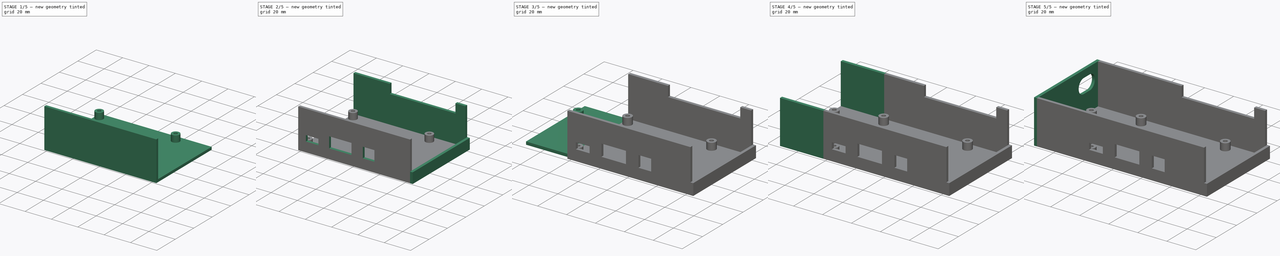
[diagram: build sequence overview — one tinted view per stage of 5, left to right]
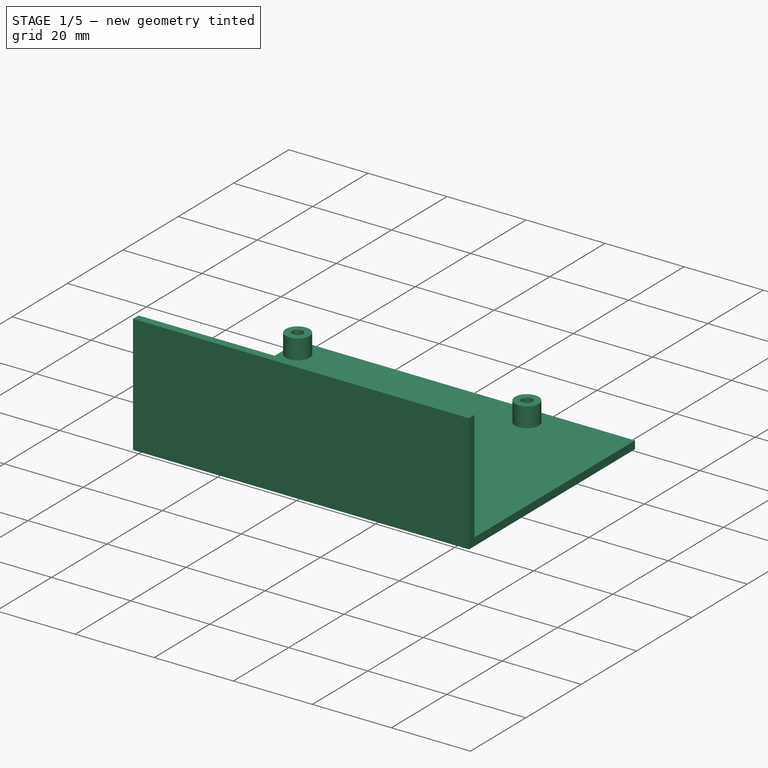
[diagram: stage 1 of 5 — iso view after this stage's code; geometry added in this stage tinted green]
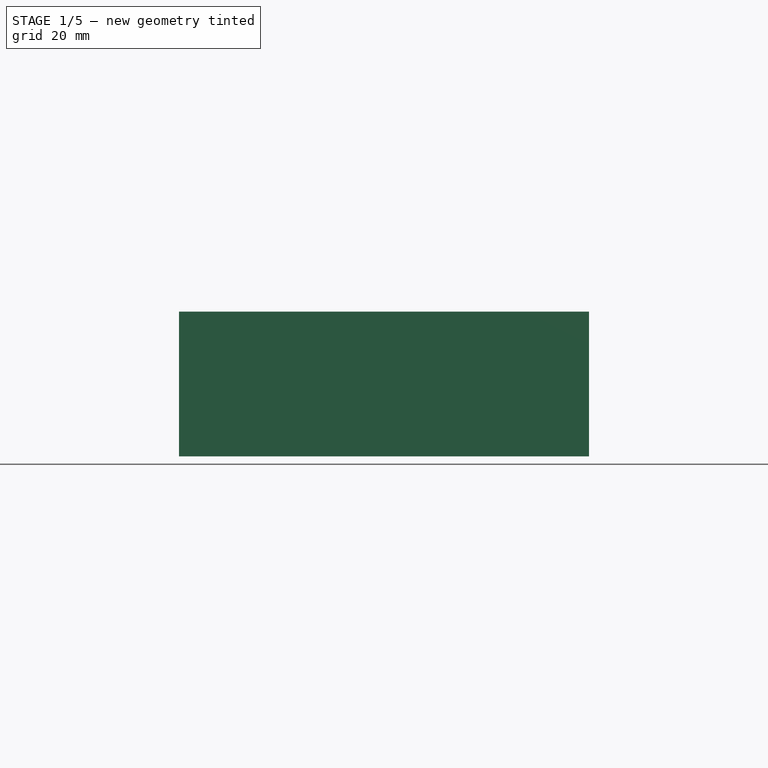
[diagram: stage 1 of 5 — front view after this stage's code; geometry added in this stage tinted green]
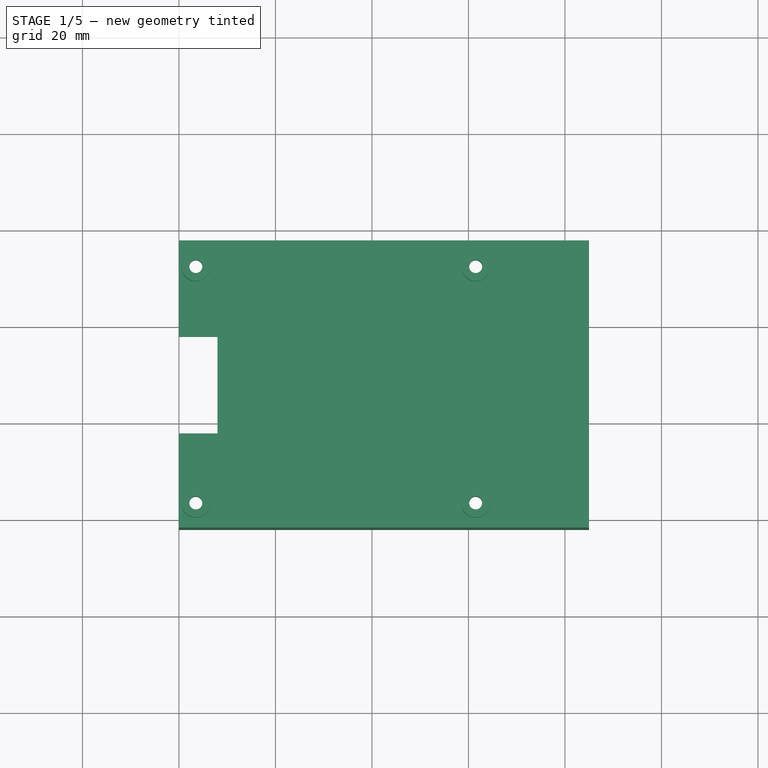
[diagram: stage 1 of 5 — top view after this stage's code; geometry added in this stage tinted green]
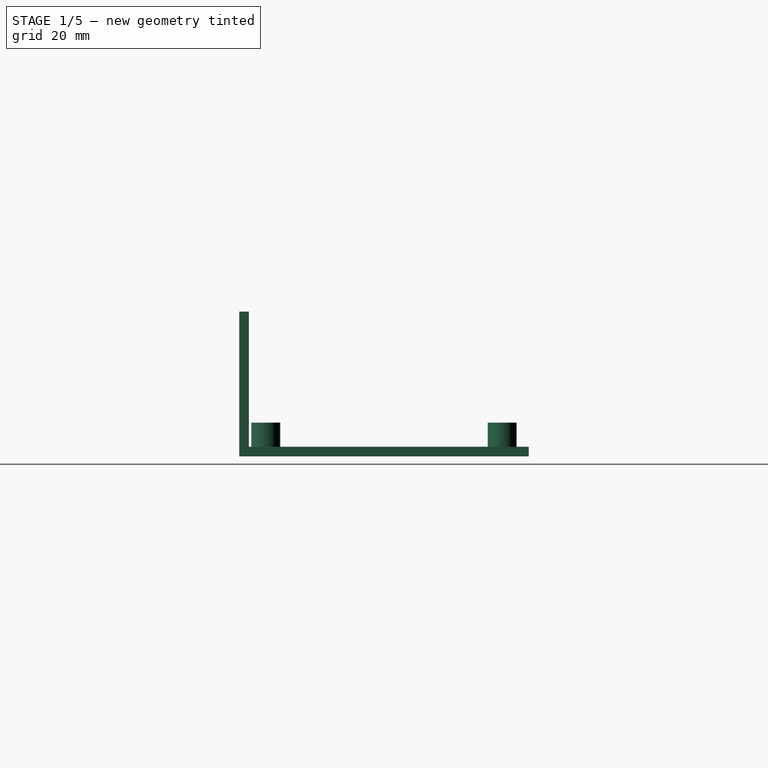
[diagram: stage 1 of 5 — right view after this stage's code; geometry added in this stage tinted green]
FCSTD DOCUMENT  (FreeCAD 0.19R24291 (Git))
Label: RPi 3 Prusa Case
License: All rights reserved
LicenseURL: http://en.wikipedia.org/wiki/All_rights_reserved
objects: Sketcher::SketchObject×18, PartDesign::Pad×10, PartDesign::Pocket×8, PartDesign::Body×1
note: 55 computed .brp shape members not serialized (recipe doc carries the construction recipe); baked Part::Feature solids carry a one-line shape summary decoded from their .brp

FEATURE [Sketcher::SketchObject] Sketch
  FullyConstrained = false
  MapMode = 5
  Support = -> [XY_Plane]
  sketch-geometry (8):
    g0: LineSegment StartX=0 StartY=0 StartZ=0 EndX=85 EndY=0 EndZ=0
    g1: LineSegment StartX=85 StartY=0 StartZ=0 EndX=85 EndY=58 EndZ=0
    g2: LineSegment StartX=85 StartY=58 StartZ=0 EndX=0 EndY=58 EndZ=0
    g3: LineSegment StartX=0 StartY=58 StartZ=0 EndX=0 EndY=0 EndZ=0
    g4: Circle CenterX=3.5 CenterY=3.5 CenterZ=0 NormalX=0 NormalY=0 NormalZ=1 AngleXU=0 Radius=1.35
    g5: Circle CenterX=61.5 CenterY=3.5 CenterZ=0 NormalX=0 NormalY=0 NormalZ=1 AngleXU=0 Radius=1.35
    g6: Circle CenterX=3.5 CenterY=52.5 CenterZ=0 NormalX=0 NormalY=0 NormalZ=1 AngleXU=0 Radius=1.35
    g7: Circle CenterX=61.5 CenterY=52.5 CenterZ=0 NormalX=0 NormalY=0 NormalZ=1 AngleXU=0 Radius=1.35
  constraints (23):
    c: Coincident(g0,g1)
    c: Coincident(g1,g2)
    c: Coincident(g2,g3)
    c: Coincident(g3,g0)
    c: Horizontal(g0)
    c: Horizontal(g2)
    c: Vertical(g1)
    c: Vertical(g3)
    c: Coincident(g0,g-1)
    c: DistanceX(g0,g0) = 85
    c: DistanceY(g3,g3) = 58
    c: Diameter(g4) = 2.7
    c: Equal(g4,g5) = 2.7
    c: Equal(g4,g6) = 2.7
    c: Equal(g4,g7) = 2.7
    c: DistanceX(g0,g4) = 3.5
    c: DistanceY(g0,g4) = 3.5
    c: DistanceY(g4,g6) = 49
    c: DistanceX(g2,g6) = 3.5
    c: DistanceX(g4,g5) = 58
    c: DistanceX(g6,g7) = 58
    c: DistanceY(g5,g7) = 49
    c: DistanceY(g7,g1) = 5.5
FEATURE [PartDesign::Pad] Pad  label="PCB mount holes"
  Direction = (1,1,1)
  Length = 2
  Length2 = 100
  Profile = -> Sketch
  Type = 0
FEATURE [Sketcher::SketchObject] Sketch001
  ExternalGeometry = -> [Pad]
  FullyConstrained = true
  MapMode = 5
  Placement = pos=(0,0,2) rot=(0,0,1;0rad)
  Support = -> [Pad]
  sketch-geometry (4):
    g0: Circle CenterX=61.5 CenterY=3.5 CenterZ=0 NormalX=0 NormalY=0 NormalZ=1 AngleXU=0 Radius=3
    g1: Circle CenterX=61.5 CenterY=52.5 CenterZ=0 NormalX=0 NormalY=0 NormalZ=1 AngleXU=0 Radius=3
    g2: Circle CenterX=3.5 CenterY=3.5 CenterZ=0 NormalX=0 NormalY=0 NormalZ=1 AngleXU=0 Radius=3
    g3: Circle CenterX=3.5 CenterY=52.5 CenterZ=0 NormalX=0 NormalY=0 NormalZ=1 AngleXU=0 Radius=3
  constraints (8):
    c: Coincident(g0,g-3)
    c: Diameter(g0) = 6
    c: Equal(g0,g1) = 6
    c: Coincident(g1,g-4)
    c: Equal(g0,g2) = 6
    c: Coincident(g2,g-6)
    c: Equal(g0,g3) = 6
    c: Coincident(g3,g-5)
FEATURE [PartDesign::Pad] Pad001  label="PCB Standoffs"
  BaseFeature = -> Pad
  Direction = (1,1,1)
  Length = 5
  Length2 = 100
  Profile = -> Sketch001
  Type = 0
FEATURE [Sketcher::SketchObject] Sketch003
  ExternalGeometry = -> [Pad001]
  FullyConstrained = true
  MapMode = 5
  Placement = pos=(0,0,0) rot=(1,0,0;3.14159rad)
  Support = -> [Pad001]
  sketch-geometry (8):
    g0: Circle CenterX=3.5 CenterY=-3.5 CenterZ=0 NormalX=0 NormalY=0 NormalZ=1 AngleXU=0 Radius=1.35
    g1: Circle CenterX=3.5 CenterY=-52.5 CenterZ=0 NormalX=0 NormalY=0 NormalZ=1 AngleXU=0 Radius=1.35
    g2: Circle CenterX=61.5 CenterY=-3.5 CenterZ=0 NormalX=0 NormalY=0 NormalZ=1 AngleXU=0 Radius=1.35
    g3: Circle CenterX=61.5 CenterY=-52.5 CenterZ=0 NormalX=0 NormalY=0 NormalZ=1 AngleXU=0 Radius=1.35
    g4: LineSegment StartX=0 StartY=-18 StartZ=0 EndX=8 EndY=-18 EndZ=0
    g5: LineSegment StartX=8 StartY=-18 StartZ=0 EndX=8 EndY=-38 EndZ=0
    g6: LineSegment StartX=8 StartY=-38 StartZ=0 EndX=0 EndY=-38 EndZ=0
    g7: LineSegment StartX=0 StartY=-38 StartZ=0 EndX=0 EndY=-18 EndZ=0
  constraints (20):
    c: Coincident(g0,g-3)
    c: Coincident(g1,g-4)
    c: Coincident(g2,g-5)
    c: Coincident(g3,g-6)
    c: Diameter(g0) = 2.7
    c: Diameter(g1) = 2.7
    c: Diameter(g2) = 2.7
    c: Diameter(g3) = 2.7
    c: Coincident(g4,g5)
    c: Coincident(g5,g6)
    c: Coincident(g6,g7)
    c: Coincident(g7,g4)
    c: Horizontal(g4)
    c: Horizontal(g6)
    c: Vertical(g5)
    c: Vertical(g7)
    c: DistanceX(g4,g4) = 8
    c: DistanceX(g4,g-1) = 0
    c: DistanceY(g4,g-1) = 18
    c: DistanceY(g5,g5) = 20
FEATURE [PartDesign::Pocket] Pocket  label="Standoff Holes"
  BaseFeature = -> Pad001
  Length = 7
  Length2 = 100
  Profile = -> Sketch003
  Type = 0
FEATURE [Sketcher::SketchObject] Sketch004
  ExternalGeometry = -> [Pocket]
  FullyConstrained = true
  MapMode = 5
  Placement = pos=(0,0,0) rot=(1,0,0;3.14159rad)
  Support = -> [Pocket]
  sketch-geometry (28):
    g0: LineSegment StartX=4.75 StartY=-5.66506 StartZ=0 EndX=6 EndY=-3.5 EndZ=0
    g1: LineSegment StartX=6 StartY=-3.5 StartZ=0 EndX=4.75 EndY=-1.33494 EndZ=0
    g2: LineSegment StartX=4.75 StartY=-1.33494 StartZ=0 EndX=2.25 EndY=-1.33494 EndZ=0
    g3: LineSegment StartX=2.25 StartY=-1.33494 StartZ=0 EndX=1 EndY=-3.5 EndZ=0
    g4: LineSegment StartX=1 StartY=-3.5 StartZ=0 EndX=2.25 EndY=-5.66506 EndZ=0
    g5: LineSegment StartX=2.25 StartY=-5.66506 StartZ=0 EndX=4.75 EndY=-5.66506 EndZ=0
    g6: Circle CenterX=3.5 CenterY=-3.5 CenterZ=0 NormalX=0 NormalY=0 NormalZ=1 AngleXU=0 Radius=2.5
    g7: LineSegment StartX=64 StartY=-3.5 StartZ=0 EndX=62.75 EndY=-1.33494 EndZ=0
    g8: LineSegment StartX=62.75 StartY=-1.33494 StartZ=0 EndX=60.25 EndY=-1.33494 EndZ=0
    g9: LineSegment StartX=60.25 StartY=-1.33494 StartZ=0 EndX=59 EndY=-3.5 EndZ=0
    g10: LineSegment StartX=59 StartY=-3.5 StartZ=0 EndX=60.25 EndY=-5.66506 EndZ=0
    g11: LineSegment StartX=60.25 StartY=-5.66506 StartZ=0 EndX=62.75 EndY=-5.66506 EndZ=0
    g12: LineSegment StartX=62.75 StartY=-5.66506 StartZ=0 EndX=64 EndY=-3.5 EndZ=0
    g13: Circle CenterX=61.5 CenterY=-3.5 CenterZ=0 NormalX=0 NormalY=0 NormalZ=1 AngleXU=0 Radius=2.5
    g14: LineSegment StartX=62.75 StartY=-50.3349 StartZ=0 EndX=60.25 EndY=-50.3349 EndZ=0
    g15: LineSegment StartX=60.25 StartY=-50.3349 StartZ=0 EndX=59 EndY=-52.5 EndZ=0
    g16: LineSegment StartX=59 StartY=-52.5 StartZ=0 EndX=60.25 EndY=-54.6651 EndZ=0
    g17: LineSegment StartX=60.25 StartY=-54.6651 StartZ=0 EndX=62.75 EndY=-54.6651 EndZ=0
    g18: LineSegment StartX=62.75 StartY=-54.6651 StartZ=0 EndX=64 EndY=-52.5 EndZ=0
    g19: LineSegment StartX=64 StartY=-52.5 StartZ=0 EndX=62.75 EndY=-50.3349 EndZ=0
    g20: Circle CenterX=61.5 CenterY=-52.5 CenterZ=0 NormalX=0 NormalY=0 NormalZ=1 AngleXU=0 Radius=2.5
    g21: LineSegment StartX=6 StartY=-52.5 StartZ=0 EndX=4.75 EndY=-50.3349 EndZ=0
    g22: LineSegment StartX=4.75 StartY=-50.3349 StartZ=0 EndX=2.25 EndY=-50.3349 EndZ=0
    g23: LineSegment StartX=2.25 StartY=-50.3349 StartZ=0 EndX=1 EndY=-52.5 EndZ=0
    g24: LineSegment StartX=1 StartY=-52.5 StartZ=0 EndX=2.25 EndY=-54.6651 EndZ=0
    g25: LineSegment StartX=2.25 StartY=-54.6651 StartZ=0 EndX=4.75 EndY=-54.6651 EndZ=0
    g26: LineSegment StartX=4.75 StartY=-54.6651 StartZ=0 EndX=6 EndY=-52.5 EndZ=0
    g27: Circle CenterX=3.5 CenterY=-52.5 CenterZ=0 NormalX=0 NormalY=0 NormalZ=1 AngleXU=0 Radius=2.5
  constraints (65):
    c: Coincident(g0,g1)
    c: Coincident(g1,g2)
    c: Coincident(g2,g3)
    c: Coincident(g3,g4)
    c: Coincident(g4,g5)
    c: Coincident(g5,g0)
    c: Equal(g0, g1-g5) x5
    c: PointOnObject(g0,g6)
    c: PointOnObject(g1,g6)
    c: PointOnObject(g2,g6)
    c: PointOnObject(g3,g6)
    c: PointOnObject(g4,g6)
    c: PointOnObject(g5,g6)
    c: Coincident(g6,g-7)
    c: Coincident(g7,g8)
    c: Coincident(g8,g9)
    c: Coincident(g9,g10)
    c: Coincident(g10,g11)
    c: Coincident(g11,g12)
    c: Coincident(g12,g7)
    c: Equal(g7, g8-g12) x5
    c: PointOnObject(g7,g13)
    c: PointOnObject(g8,g13)
    c: PointOnObject(g9,g13)
    c: PointOnObject(g10,g13)
    c: PointOnObject(g11,g13)
    c: PointOnObject(g12,g13)
    c: Coincident(g13,g-8)
    c: Coincident(g14,g15)
    c: Coincident(g15,g16)
    c: Coincident(g16,g17)
    c: Coincident(g17,g18)
    c: Coincident(g18,g19)
    c: Coincident(g19,g14)
    c: Equal(g14, g15-g19) x5
    c: PointOnObject(g14,g20)
    c: PointOnObject(g15,g20)
    c: PointOnObject(g16,g20)
    c: PointOnObject(g17,g20)
    c: PointOnObject(g18,g20)
    c: PointOnObject(g19,g20)
    c: Coincident(g20,g-9)
    c: Coincident(g21,g22)
    c: Coincident(g22,g23)
    c: Coincident(g23,g24)
    c: Coincident(g24,g25)
    c: Coincident(g25,g26)
    c: Coincident(g26,g21)
    c: Equal(g21, g22-g26) x5
    c: PointOnObject(g21,g27)
    c: PointOnObject(g22,g27)
    c: PointOnObject(g23,g27)
    c: PointOnObject(g24,g27)
    c: PointOnObject(g25,g27)
    c: PointOnObject(g26,g27)
    c: Coincident(g27,g-10)
    c: Diameter(g27) = 5
    c: Diameter(g6) = 5
    c: Diameter(g13) = 5
    c: Diameter(g20) = 5
    c: Parallel(g2,g-1)
    c: Parallel(g8,g-1)
    c: Parallel(g14,g-1)
    c: Parallel(g22,g-1)
    c: DistanceX(g-4,g-5) = 8
FEATURE [Sketcher::SketchObject] Sketch005
  FullyConstrained = false
  MapMode = 5
  Placement = pos=(0,0,0) rot=(1,0,0;1.5708rad)
  sketch-geometry (4):
    g0: LineSegment StartX=0 StartY=0 StartZ=0 EndX=85 EndY=0 EndZ=0
    g1: LineSegment StartX=85 StartY=0 StartZ=0 EndX=85 EndY=30 EndZ=0
    g2: LineSegment StartX=85 StartY=30 StartZ=0 EndX=0 EndY=30 EndZ=0
    g3: LineSegment StartX=0 StartY=30 StartZ=0 EndX=0 EndY=0 EndZ=0
  constraints (10):
    c: Coincident(g0,g1)
    c: Coincident(g1,g2)
    c: Coincident(g2,g3)
    c: Coincident(g3,g0)
    c: Horizontal(g0)
    c: Horizontal(g2)
    c: Vertical(g1)
    c: Vertical(g3)
    c: DistanceY(g-1,g0) = 0
    c: DistanceY(g1,g1) = 30
FEATURE [PartDesign::Pad] Pad002  label="Connector Sidewall"
  BaseFeature = -> Pocket
  Direction = (1,1,1)
  Length = 2
  Length2 = 100
  Profile = -> Sketch005
  Type = 0
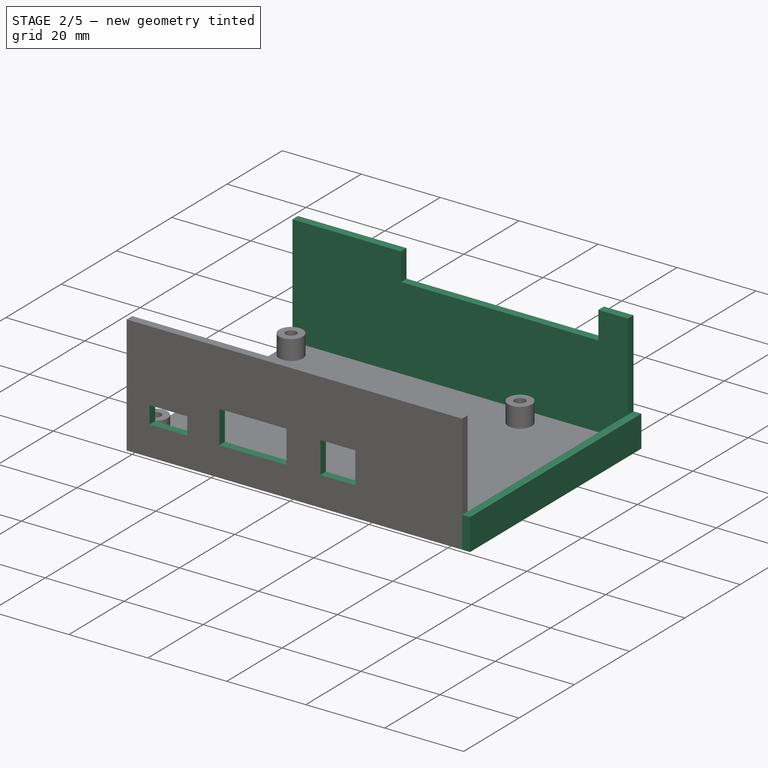
[diagram: stage 2 of 5 — iso view after this stage's code; geometry added in this stage tinted green]
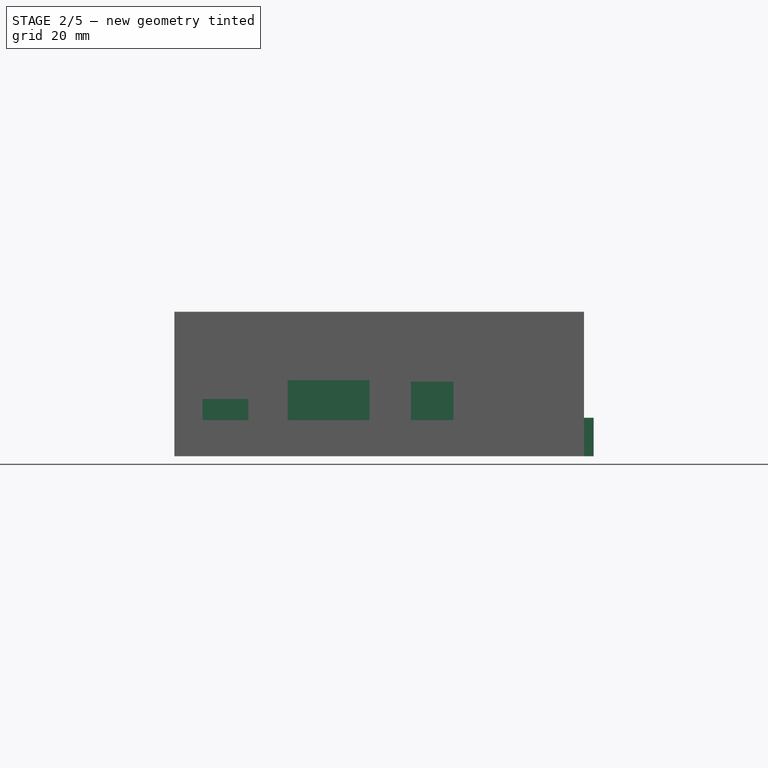
[diagram: stage 2 of 5 — front view after this stage's code; geometry added in this stage tinted green]
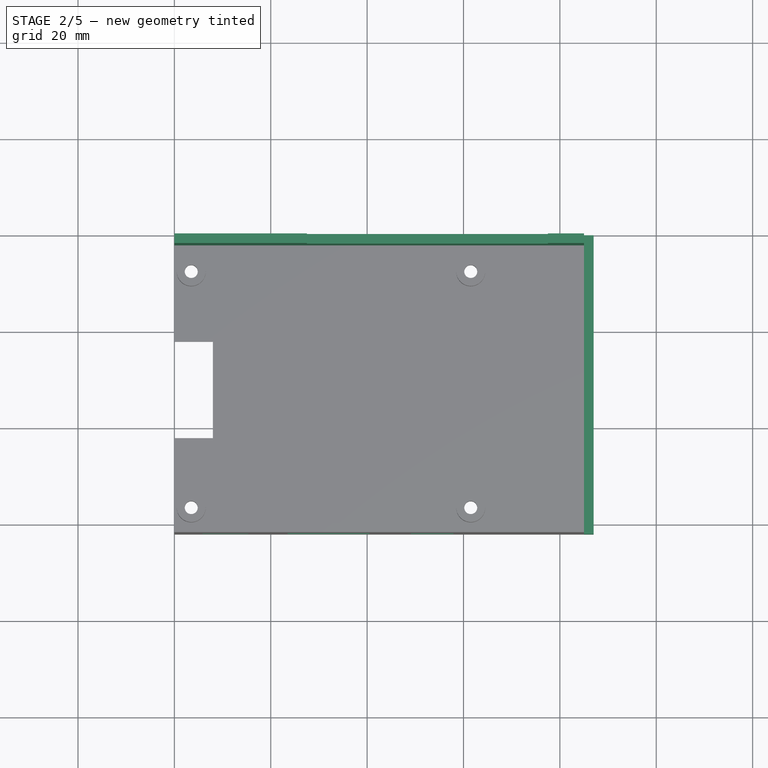
[diagram: stage 2 of 5 — top view after this stage's code; geometry added in this stage tinted green]
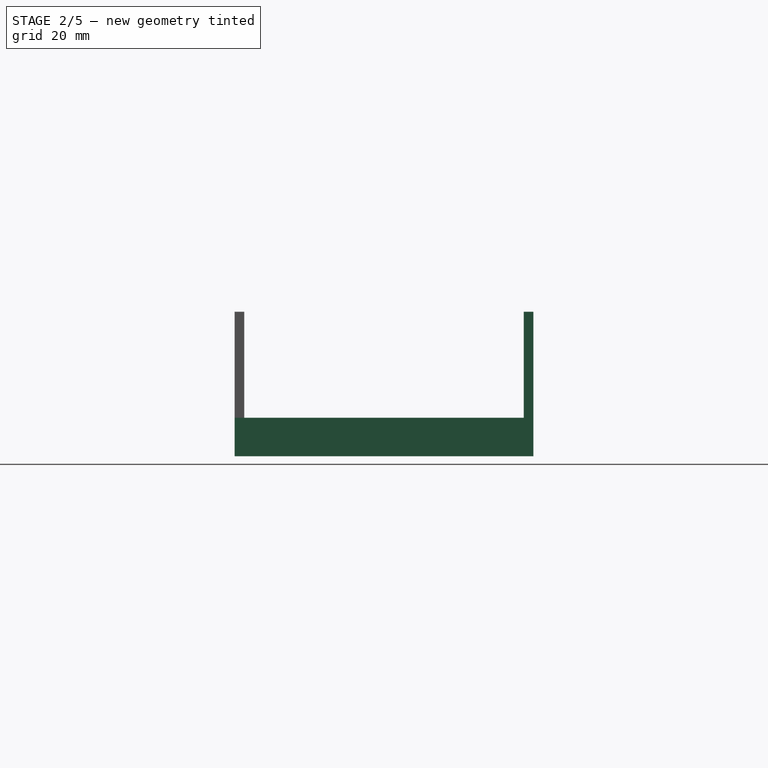
[diagram: stage 2 of 5 — right view after this stage's code; geometry added in this stage tinted green]
FEATURE [Sketcher::SketchObject] Sketch006
  FullyConstrained = true
  MapMode = 5
  Placement = pos=(66.9832,38.6727,0) rot=(0.377964,0.654654,0.654654;2.41886rad)
  Support = -> [Pad002]
  sketch-geometry (12):
    g0: LineSegment StartX=5.85 StartY=11.9 StartZ=0 EndX=15.35 EndY=11.9 EndZ=0
    g1: LineSegment StartX=15.35 StartY=11.9 StartZ=0 EndX=15.35 EndY=7.5 EndZ=0
    g2: LineSegment StartX=15.35 StartY=7.5 StartZ=0 EndX=5.85 EndY=7.5 EndZ=0
    g3: LineSegment StartX=5.85 StartY=7.5 StartZ=0 EndX=5.85 EndY=11.9 EndZ=0
    g4: LineSegment StartX=23.5 StartY=15.8 StartZ=0 EndX=40.5 EndY=15.8 EndZ=0
    g5: LineSegment StartX=40.5 StartY=15.8 StartZ=0 EndX=40.5 EndY=7.5 EndZ=0
    g6: LineSegment StartX=40.5 StartY=7.5 StartZ=0 EndX=23.5 EndY=7.5 EndZ=0
    g7: LineSegment StartX=23.5 StartY=7.5 StartZ=0 EndX=23.5 EndY=15.8 EndZ=0
    g8: LineSegment StartX=49.075 StartY=15.5 StartZ=0 EndX=57.925 EndY=15.5 EndZ=0
    g9: LineSegment StartX=57.925 StartY=15.5 StartZ=0 EndX=57.925 EndY=7.5 EndZ=0
    g10: LineSegment StartX=57.925 StartY=7.5 StartZ=0 EndX=49.075 EndY=7.5 EndZ=0
    g11: LineSegment StartX=49.075 StartY=7.5 StartZ=0 EndX=49.075 EndY=15.5 EndZ=0
  constraints (36):
    c: Coincident(g0,g1)
    c: Coincident(g1,g2)
    c: Coincident(g2,g3)
    c: Coincident(g3,g0)
    c: Horizontal(g0)
    c: Horizontal(g2)
    c: Vertical(g1)
    c: Vertical(g3)
    c: DistanceY(g1,g1) = 4.4
    c: DistanceX(g0,g0) = 9.5
    c: DistanceX(g-1,g2) = 5.85
    c: Coincident(g4,g5)
    c: Coincident(g5,g6)
    c: Coincident(g6,g7)
    c: Coincident(g7,g4)
    c: Horizontal(g4)
    c: Horizontal(g6)
    c: Vertical(g5)
    c: Vertical(g7)
    c: DistanceX(g4,g4) = 17
    c: DistanceY(g5,g5) = 8.3
    c: DistanceX(g-1,g6) = 23.5
    c: Coincident(g8,g9)
    c: Coincident(g9,g10)
    c: Coincident(g10,g11)
    c: Coincident(g11,g8)
    c: Horizontal(g8)
    c: Horizontal(g10)
    c: Vertical(g9)
    c: Vertical(g11)
    c: DistanceX(g8,g8) = 8.85
    c: DistanceY(g9,g9) = 8
    c: DistanceX(g-1,g10) = 49.075
    c: DistanceY(g-1,g2) = 7.5
    c: DistanceY(g-1,g6) = 7.5
    c: DistanceY(g-1,g10) = 7.5
FEATURE [PartDesign::Pocket] Pocket002  label="Connector Cutouts"
  BaseFeature = -> Pad002
  Length = 2
  Length2 = 100
  Profile = -> Sketch006
  Type = 0
FEATURE [Sketcher::SketchObject] Sketch007
  ExternalGeometry = -> [Pocket002]
  FullyConstrained = false
  MapMode = 5
  Placement = pos=(85,0,0) rot=(0.57735,0.57735,0.57735;2.0944rad)
  Support = -> [Pocket002]
  sketch-geometry (4):
    g0: LineSegment StartX=2 StartY=0 StartZ=0 EndX=-2 EndY=0 EndZ=0
    g1: LineSegment StartX=-2 StartY=0 StartZ=0 EndX=-2 EndY=8 EndZ=0
    g2: LineSegment StartX=-2 StartY=8 StartZ=0 EndX=2 EndY=8 EndZ=0
    g3: LineSegment StartX=2 StartY=8 StartZ=0 EndX=2 EndY=0 EndZ=0
  constraints (12):
    c: Coincident(g0,g1)
    c: Coincident(g1,g2)
    c: Coincident(g2,g3)
    c: Coincident(g3,g0)
    c: Horizontal(g0)
    c: Horizontal(g2)
    c: Vertical(g1)
    c: Vertical(g3)
    c: DistanceX(g0,g-1) = 2
    c: DistanceY(g-1,g0) = 0
    c: DistanceX(g-3,g0) = 2
    c: DistanceY(g0,g1) = 8
FEATURE [PartDesign::Pad] Pad003  label="Front Side"
  BaseFeature = -> Pocket002
  Direction = (1,1,1)
  Length = 2
  Length2 = 100
  Profile = -> Sketch007
  Type = 0
FEATURE [Sketcher::SketchObject] Sketch008
  ExternalGeometry = -> [Pad003]
  FullyConstrained = false
  MapMode = 5
  Placement = pos=(0,38,0) rot=(1,0,0;1.5708rad)
  Support = -> [Pad003]
  sketch-geometry (8):
    g0: LineSegment StartX=0 StartY=0 StartZ=0 EndX=4.85 EndY=0 EndZ=0
    g1: LineSegment StartX=4.85 StartY=0 StartZ=0 EndX=4.85 EndY=30 EndZ=0
    g2: LineSegment StartX=0 StartY=30 StartZ=0 EndX=0 EndY=0 EndZ=0
    g3: LineSegment StartX=4.85 StartY=30 StartZ=0 EndX=12.35 EndY=30 EndZ=0
    g4: LineSegment StartX=12.35 StartY=30 StartZ=0 EndX=12.35 EndY=23 EndZ=0
    g5: LineSegment StartX=12.35 StartY=23 StartZ=0 EndX=62.35 EndY=23 EndZ=0
    g6: LineSegment StartX=62.35 StartY=23 StartZ=0 EndX=62.35 EndY=30 EndZ=0
    g7: LineSegment StartX=62.35 StartY=30 StartZ=0 EndX=0 EndY=30 EndZ=0
  constraints (22):
    c: Coincident(g0,g1)
    c: Coincident(g2,g0)
    c: Horizontal(g0)
    c: Vertical(g1)
    c: Vertical(g2)
    c: Coincident(g0,g-1)
    c: DistanceY(g2,g2) = 30
    c: Coincident(g3,g1)
    c: Horizontal(g3)
    c: DistanceX(g3,g3) = 7.5
    c: Coincident(g4,g3)
    c: Vertical(g4)
    c: DistanceY(g4,g4) = 7
    c: DistanceY(g1,g1) = 30
    c: Coincident(g5,g4)
    c: Horizontal(g5)
    c: DistanceX(g5,g5) = 50
    c: Coincident(g6,g5)
    c: Vertical(g6)
    c: Coincident(g7,g6)
    c: Coincident(g7,g2)
    c: Horizontal(g7)
FEATURE [PartDesign::Pad] Pad004  label="40 Pin Connector Side"
  BaseFeature = -> Pad003
  Direction = (1,1,1)
  Length = 2
  Length2 = 100
  Profile = -> Sketch008
  Type = 0
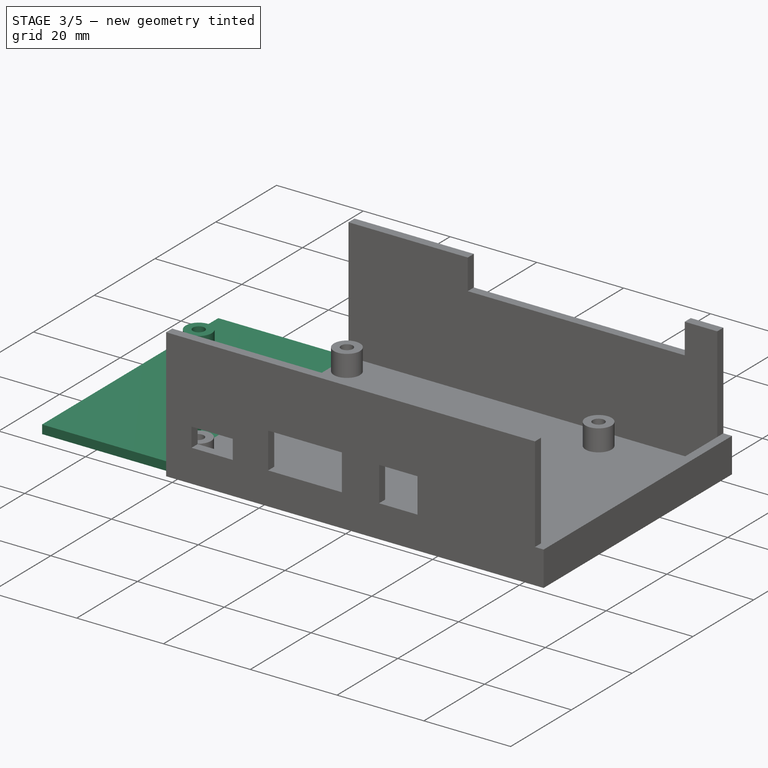
[diagram: stage 3 of 5 — iso view after this stage's code; geometry added in this stage tinted green]
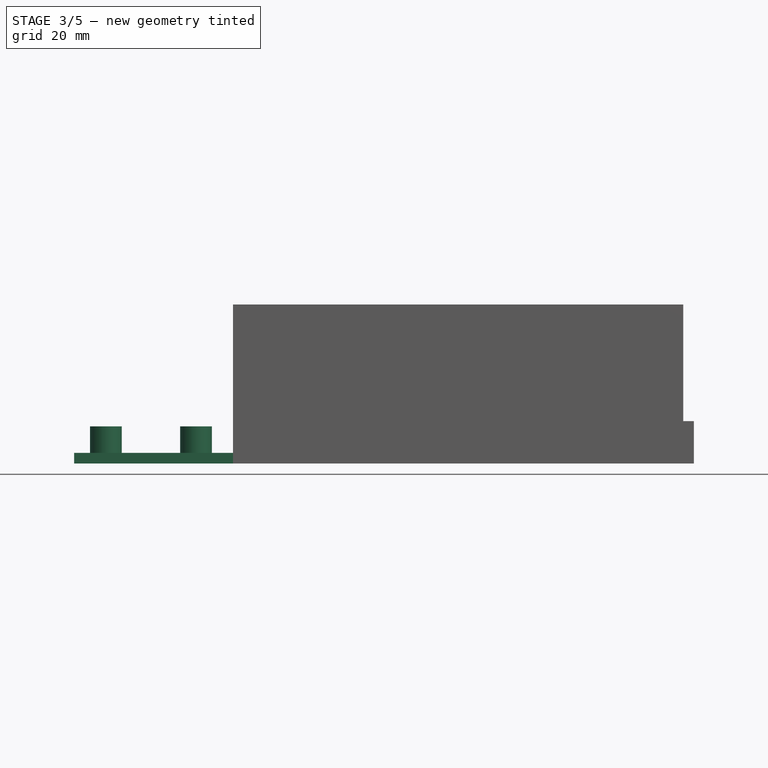
[diagram: stage 3 of 5 — front view after this stage's code; geometry added in this stage tinted green]
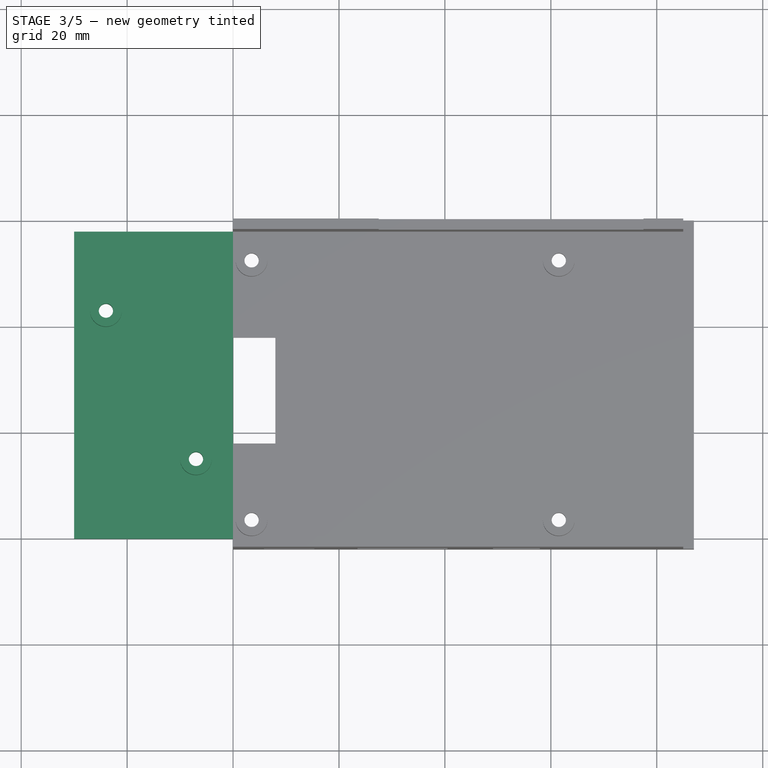
[diagram: stage 3 of 5 — top view after this stage's code; geometry added in this stage tinted green]
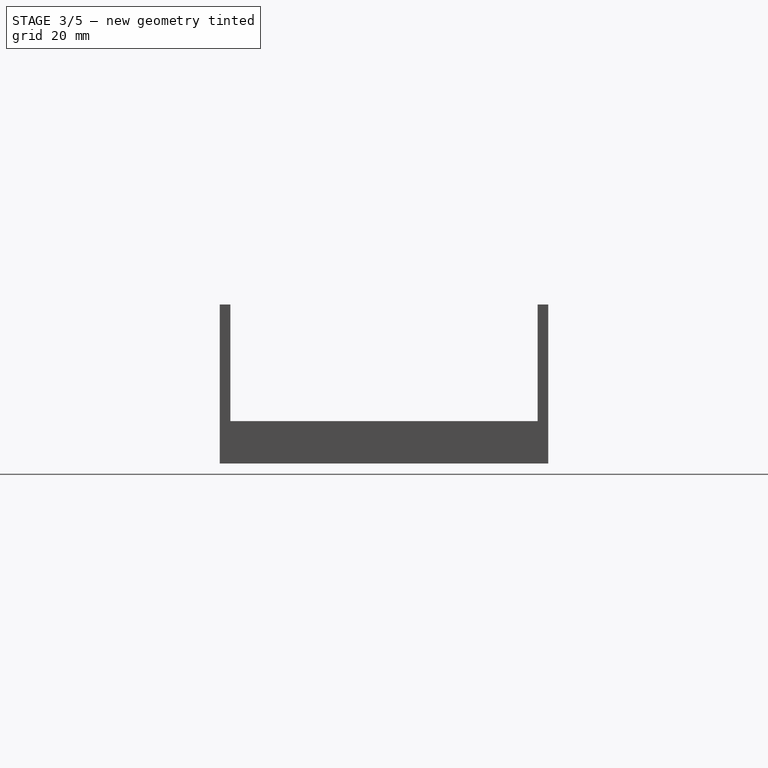
[diagram: stage 3 of 5 — right view after this stage's code; geometry added in this stage tinted green]
FEATURE [Sketcher::SketchObject] Sketch009
  ExternalGeometry = -> [Pad004]
  FullyConstrained = false
  MapMode = 5
  Placement = pos=(0,0,0) rot=(0.57735,-0.57735,-0.57735;2.0944rad)
  Support = -> [Pad004]
  sketch-geometry (4):
    g0: LineSegment StartX=0 StartY=0 StartZ=0 EndX=-58 EndY=0 EndZ=0
    g1: LineSegment StartX=-58 StartY=0 StartZ=0 EndX=-58 EndY=2 EndZ=0
    g2: LineSegment StartX=-58 StartY=2 StartZ=0 EndX=0 EndY=2 EndZ=0
    g3: LineSegment StartX=0 StartY=2 StartZ=0 EndX=0 EndY=0 EndZ=0
  constraints (10):
    c: Coincident(g0,g1)
    c: Coincident(g1,g2)
    c: Coincident(g2,g3)
    c: Coincident(g3,g0)
    c: Horizontal(g0)
    c: Horizontal(g2)
    c: Vertical(g1)
    c: Vertical(g3)
    c: Coincident(g0,g-1)
    c: Coincident(g1,g-3)
FEATURE [PartDesign::Pad] Pad005  label="Buck Converter Extension"
  BaseFeature = -> Pad004
  Direction = (1,1,1)
  Length = 30
  Length2 = 100
  Profile = -> Sketch009
  Type = 0
FEATURE [Sketcher::SketchObject] Sketch010
  ExternalGeometry = -> [Pad005]
  FullyConstrained = true
  MapMode = 5
  Placement = pos=(0,0,2) rot=(0,0,1;0rad)
  Support = -> [Pad005]
  sketch-geometry (2):
    g0: Circle CenterX=-7 CenterY=43 CenterZ=0 NormalX=0 NormalY=0 NormalZ=1 AngleXU=0 Radius=3
    g1: Circle CenterX=-24 CenterY=15 CenterZ=0 NormalX=0 NormalY=0 NormalZ=1 AngleXU=0 Radius=3
  constraints (8):
    c: Diameter(g1) = 6
    c: Diameter(g0) = 6
    c: DistanceY(g1,g0) = 28
    c: DistanceY(g-3,g-3) = 58
    c: DistanceY(g-3) = 0
    c: DistanceY(g0,g-3) = 15
    c: DistanceX(g0,g-1) = 7
    c: DistanceX(g1,g0) = 17
FEATURE [PartDesign::Pad] Pad006  label="BC Standoffs"
  BaseFeature = -> Pad005
  Direction = (1,1,1)
  Length = 11
  Length2 = 100
  Profile = -> Sketch010
  Type = 0
FEATURE [Sketcher::SketchObject] Sketch011
  ExternalGeometry = -> [Pad006]
  FullyConstrained = false
  MapMode = 5
  Placement = pos=(0,0,13) rot=(0,0,1;0rad)
  Support = -> [Pad006]
  sketch-geometry (1):
    g0: Circle CenterX=-24 CenterY=43 CenterZ=0 NormalX=0 NormalY=0 NormalZ=1 AngleXU=0 Radius=1.35
  constraints (2):
    c: Coincident(g0,g-3)
    c: Diameter(g0) = 2.7
FEATURE [PartDesign::Pocket] Pocket003  label="BC Standoff hole 1"
  BaseFeature = -> Pad006
  Length = 7
  Length2 = 100
  Profile = -> Sketch011
  Type = 0
FEATURE [Sketcher::SketchObject] Sketch012
  ExternalGeometry = -> [Pocket003]
  FullyConstrained = false
  MapMode = 5
  Placement = pos=(0,0,7) rot=(0,0,1;0rad)
  Support = -> [Pocket003]
  sketch-geometry (1):
    g0: Circle CenterX=-7 CenterY=15 CenterZ=0 NormalX=0 NormalY=0 NormalZ=1 AngleXU=0 Radius=1.35
  constraints (2):
    c: Coincident(g0,g-3)
    c: Diameter(g0) = 2.7
FEATURE [PartDesign::Pocket] Pocket004  label="BC Sttandoff hole 2"
  BaseFeature = -> Pocket003
  Length = 7
  Length2 = 100
  Profile = -> Sketch012
  Type = 0
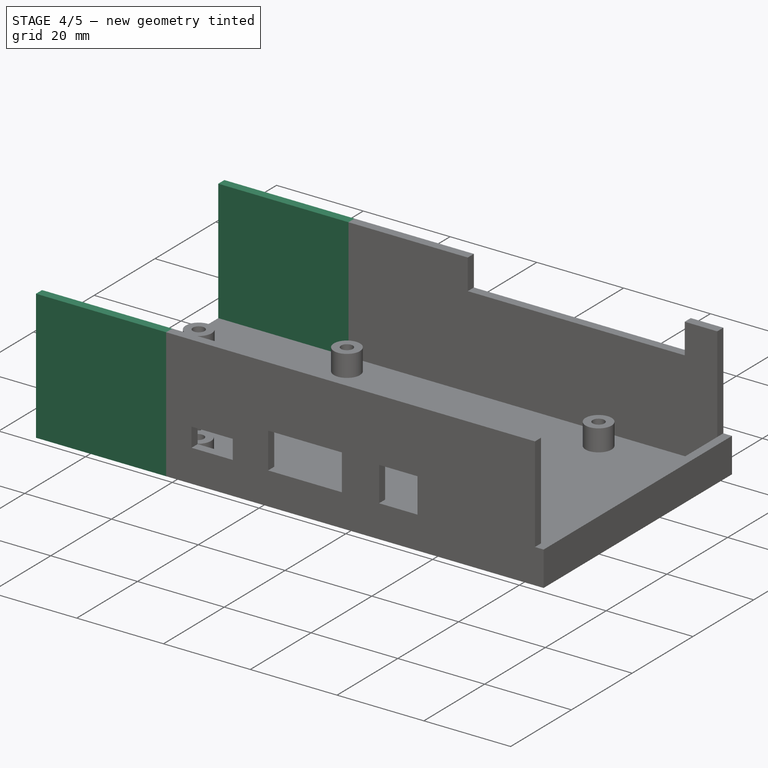
[diagram: stage 4 of 5 — iso view after this stage's code; geometry added in this stage tinted green]
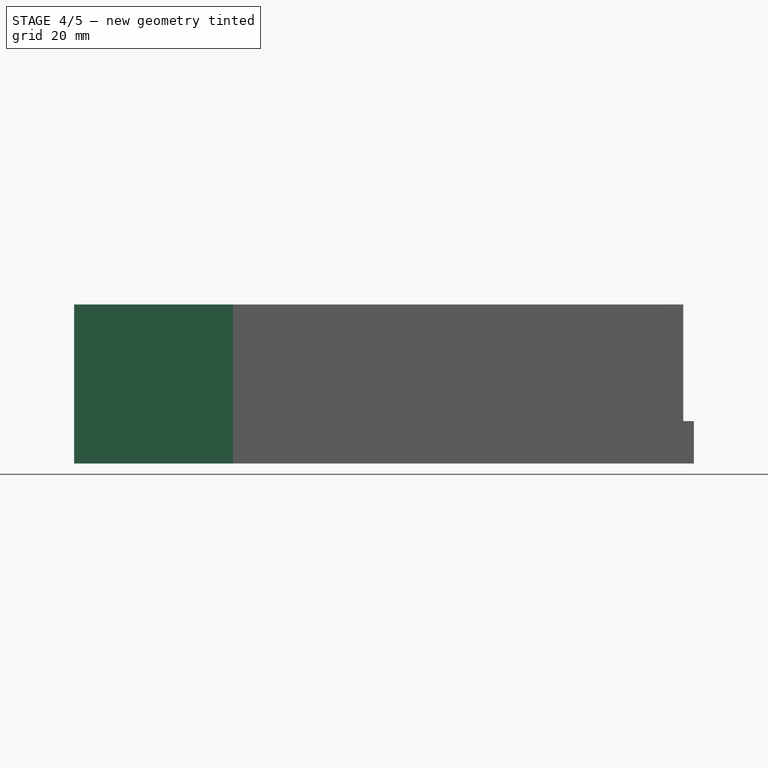
[diagram: stage 4 of 5 — front view after this stage's code; geometry added in this stage tinted green]
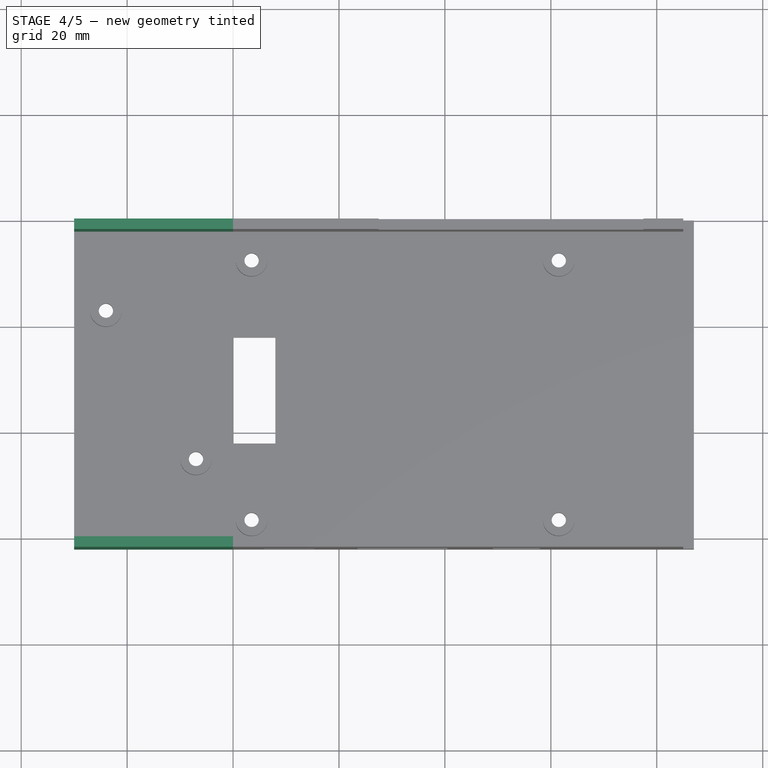
[diagram: stage 4 of 5 — top view after this stage's code; geometry added in this stage tinted green]
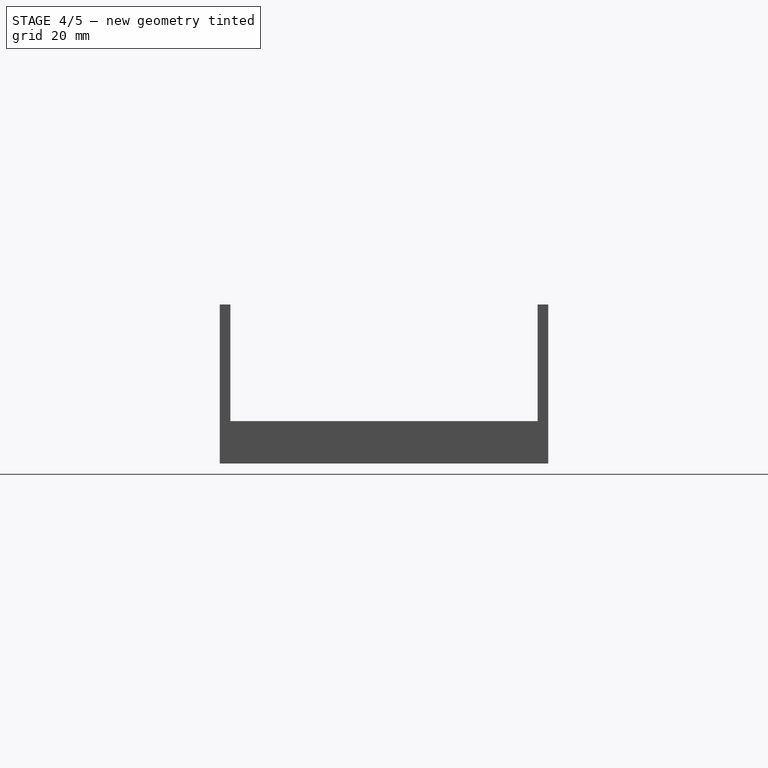
[diagram: stage 4 of 5 — right view after this stage's code; geometry added in this stage tinted green]
FEATURE [Sketcher::SketchObject] Sketch013
  ExternalGeometry = -> [Pocket004]
  FullyConstrained = false
  MapMode = 5
  Placement = pos=(0,0,0) rot=(1,0,0;3.14159rad)
  Support = -> [Pocket004]
  sketch-geometry (12):
    g0: LineSegment StartX=-7 StartY=-17.5 StartZ=0 EndX=-4.62236 EndY=-15.7725 EndZ=0
    g1: LineSegment StartX=-4.62236 StartY=-15.7725 StartZ=0 EndX=-5.53054 EndY=-12.9775 EndZ=0
    g2: LineSegment StartX=-5.53054 StartY=-12.9775 StartZ=0 EndX=-8.46946 EndY=-12.9775 EndZ=0
    g3: LineSegment StartX=-8.46946 StartY=-12.9775 StartZ=0 EndX=-9.37764 EndY=-15.7725 EndZ=0
    g4: LineSegment StartX=-9.37764 StartY=-15.7725 StartZ=0 EndX=-7 EndY=-17.5 EndZ=0
    g5: Circle CenterX=-7 CenterY=-15 CenterZ=0 NormalX=0 NormalY=0 NormalZ=1 AngleXU=0 Radius=2.5
    g6: LineSegment StartX=-21.6224 StartY=-43.7725 StartZ=0 EndX=-22.5305 EndY=-40.9775 EndZ=0
    g7: LineSegment StartX=-22.5305 StartY=-40.9775 StartZ=0 EndX=-25.4695 EndY=-40.9775 EndZ=0
    g8: LineSegment StartX=-25.4695 StartY=-40.9775 StartZ=0 EndX=-26.3776 EndY=-43.7725 EndZ=0
    g9: LineSegment StartX=-26.3776 StartY=-43.7725 StartZ=0 EndX=-24 EndY=-45.5 EndZ=0
    g10: LineSegment StartX=-24 StartY=-45.5 StartZ=0 EndX=-21.6224 EndY=-43.7725 EndZ=0
    g11: Circle CenterX=-24 CenterY=-43 CenterZ=0 NormalX=0 NormalY=0 NormalZ=1 AngleXU=0 Radius=2.5
  constraints (28):
    c: Coincident(g0,g1)
    c: Coincident(g1,g2)
    c: Coincident(g2,g3)
    c: Coincident(g3,g4)
    c: Coincident(g4,g0)
    c: Equal(g0, g1-g4) x4
    c: PointOnObject(g0,g5)
    c: PointOnObject(g1,g5)
    c: PointOnObject(g2,g5)
    c: PointOnObject(g3,g5)
    c: PointOnObject(g4,g5)
    c: Coincident(g5,g-3)
    c: Coincident(g6,g7)
    c: Coincident(g7,g8)
    c: Coincident(g8,g9)
    c: Coincident(g9,g10)
    c: Coincident(g10,g6)
    c: Equal(g6, g7-g10) x4
    c: PointOnObject(g6,g11)
    c: PointOnObject(g7,g11)
    c: PointOnObject(g8,g11)
    c: PointOnObject(g9,g11)
    c: PointOnObject(g10,g11)
    c: Coincident(g11,g-4)
    c: Diameter(g11) = 5
    c: Diameter(g5) = 5
    c: Parallel(g2,g-1)
    c: Parallel(g7,g-1)
FEATURE [PartDesign::Pocket] Pocket005  label="BC Nut Holes"
  BaseFeature = -> Pocket004
  Length = 2
  Length2 = 100
  Profile = -> Sketch013
  Type = 0
FEATURE [Sketcher::SketchObject] Sketch014
  ExternalGeometry = -> [Pocket005]
  FullyConstrained = false
  MapMode = 5
  Placement = pos=(0,0,0) rot=(0.57735,-0.57735,-0.57735;2.0944rad)
  Support = -> [Pocket005]
  sketch-geometry (4):
    g0: LineSegment StartX=0 StartY=0 StartZ=0 EndX=2 EndY=0 EndZ=0
    g1: LineSegment StartX=2 StartY=0 StartZ=0 EndX=2 EndY=30 EndZ=0
    g2: LineSegment StartX=2 StartY=30 StartZ=0 EndX=0 EndY=30 EndZ=0
    g3: LineSegment StartX=0 StartY=30 StartZ=0 EndX=0 EndY=0 EndZ=0
  constraints (10):
    c: Coincident(g0,g1)
    c: Coincident(g1,g2)
    c: Coincident(g2,g3)
    c: Coincident(g3,g0)
    c: Horizontal(g0)
    c: Horizontal(g2)
    c: Vertical(g1)
    c: Vertical(g3)
    c: Coincident(g0,g-1)
    c: Coincident(g1,g-3)
FEATURE [PartDesign::Pad] Pad007  label="BC Side Extension 1"
  BaseFeature = -> Pocket005
  Direction = (1,1,1)
  Length = 30
  Length2 = 100
  Profile = -> Sketch014
  Type = 0
FEATURE [Sketcher::SketchObject] Sketch015
  ExternalGeometry = -> [Pad007]
  FullyConstrained = false
  MapMode = 5
  Placement = pos=(0,0,0) rot=(0.57735,-0.57735,-0.57735;2.0944rad)
  Support = -> [Pad007]
  sketch-geometry (4):
    g0: LineSegment StartX=-58 StartY=30 StartZ=0 EndX=-60 EndY=30 EndZ=0
    g1: LineSegment StartX=-60 StartY=30 StartZ=0 EndX=-60 EndY=0 EndZ=0
    g2: LineSegment StartX=-60 StartY=0 StartZ=0 EndX=-58 EndY=0 EndZ=0
    g3: LineSegment StartX=-58 StartY=0 StartZ=0 EndX=-58 EndY=30 EndZ=0
  constraints (10):
    c: Coincident(g0,g1)
    c: Coincident(g1,g2)
    c: Coincident(g2,g3)
    c: Coincident(g3,g0)
    c: Horizontal(g0)
    c: Horizontal(g2)
    c: Vertical(g1)
    c: Vertical(g3)
    c: Coincident(g0,g-4)
    c: Coincident(g1,g-3)
FEATURE [PartDesign::Pad] Pad008  label="BC Side Extension 2"
  BaseFeature = -> Pad007
  Direction = (1,1,1)
  Length = 30
  Length2 = 100
  Profile = -> Sketch015
  Type = 0
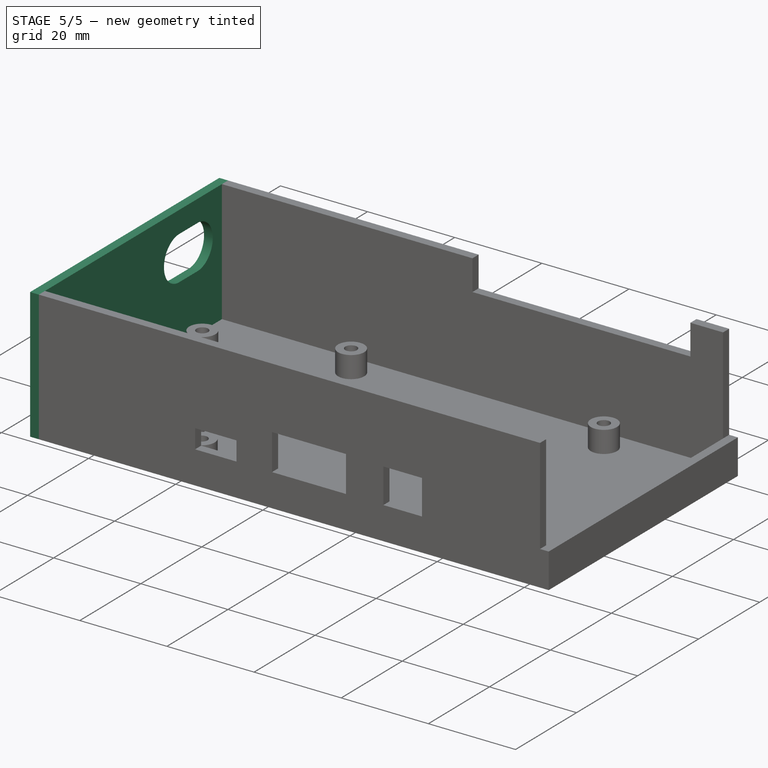
[diagram: stage 5 of 5 — iso view after this stage's code; geometry added in this stage tinted green]
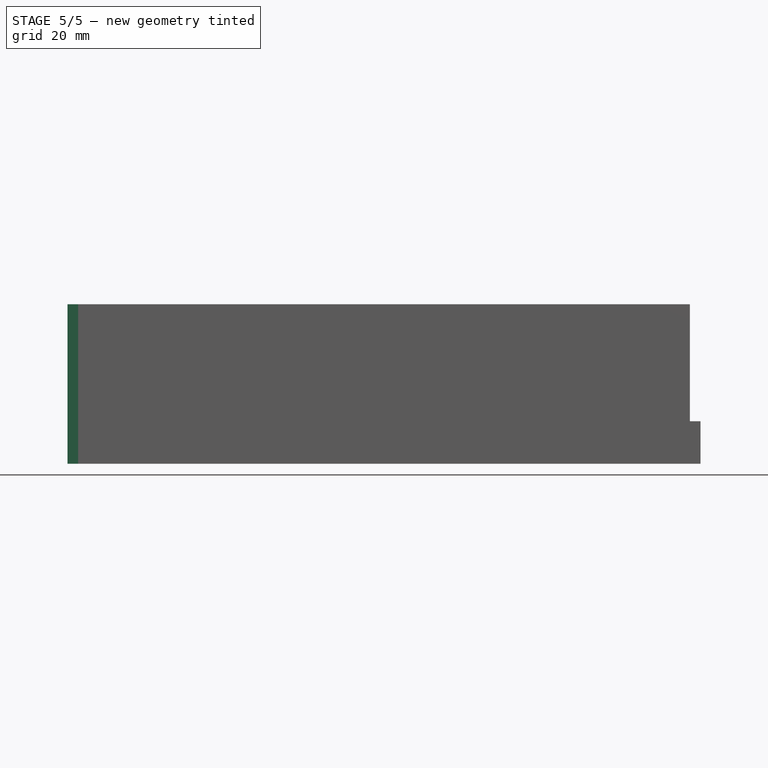
[diagram: stage 5 of 5 — front view after this stage's code; geometry added in this stage tinted green]
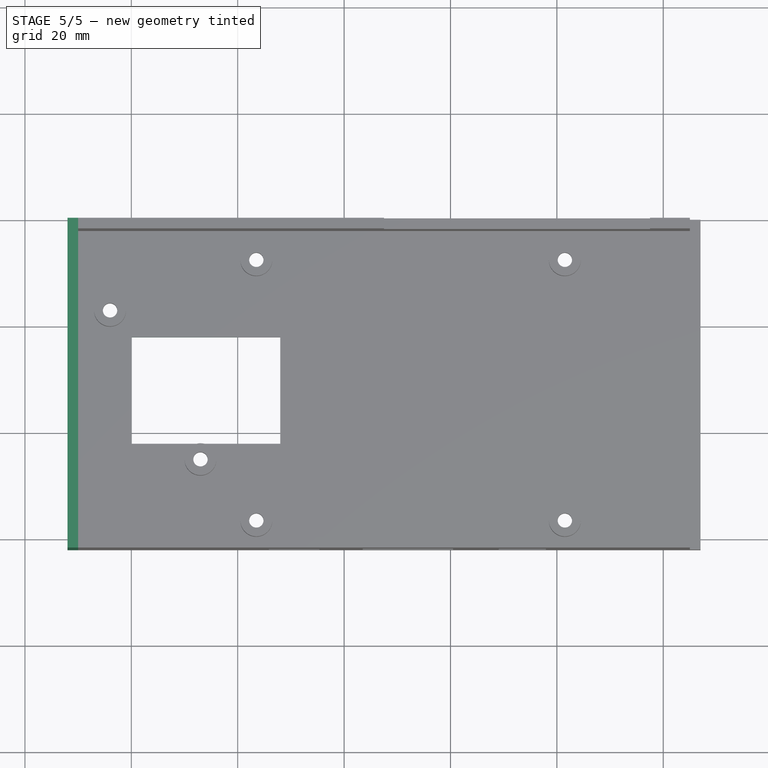
[diagram: stage 5 of 5 — top view after this stage's code; geometry added in this stage tinted green]
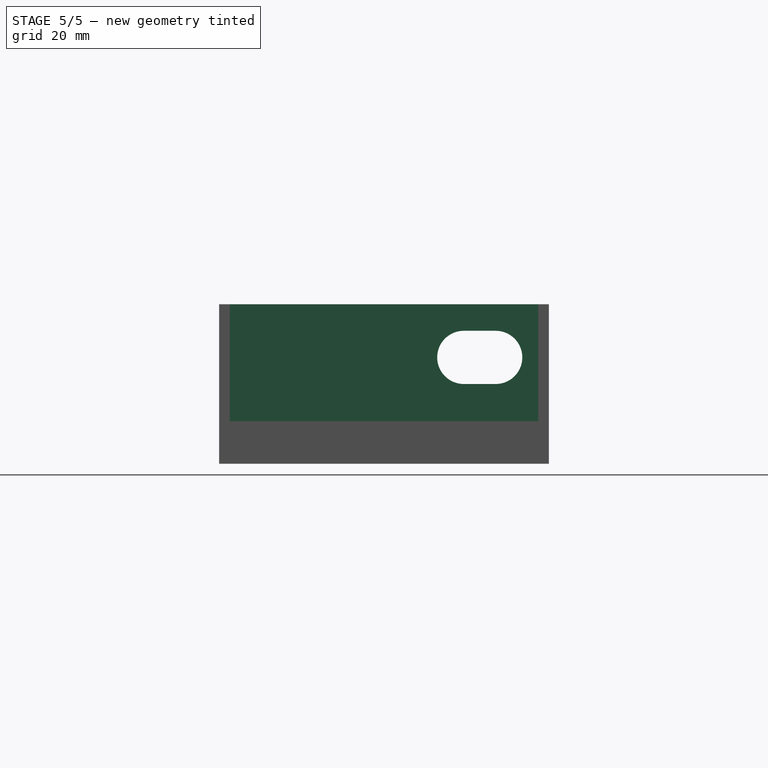
[diagram: stage 5 of 5 — right view after this stage's code; geometry added in this stage tinted green]
FEATURE [Sketcher::SketchObject] Sketch016
  ExternalGeometry = -> [Pad008]
  FullyConstrained = false
  MapMode = 5
  Placement = pos=(-30,0,0) rot=(0.57735,-0.57735,-0.57735;2.0944rad)
  Support = -> [Pad008]
  sketch-geometry (4):
    g0: LineSegment StartX=-60 StartY=30 StartZ=0 EndX=2 EndY=30 EndZ=0
    g1: LineSegment StartX=2 StartY=30 StartZ=0 EndX=2 EndY=0 EndZ=0
    g2: LineSegment StartX=2 StartY=0 StartZ=0 EndX=-60 EndY=0 EndZ=0
    g3: LineSegment StartX=-60 StartY=0 StartZ=0 EndX=-60 EndY=30 EndZ=0
  constraints (10):
    c: Coincident(g0,g1)
    c: Coincident(g1,g2)
    c: Coincident(g2,g3)
    c: Coincident(g3,g0)
    c: Horizontal(g0)
    c: Horizontal(g2)
    c: Vertical(g1)
    c: Vertical(g3)
    c: Coincident(g0,g-3)
    c: Coincident(g1,g-4)
FEATURE [PartDesign::Pad] Pad009  label="BC Back Wall"
  BaseFeature = -> Pad008
  Direction = (1,1,1)
  Length = 2
  Length2 = 100
  Profile = -> Sketch016
  Type = 0
FEATURE [Sketcher::SketchObject] Sketch017
  ExternalGeometry = -> [Pad009]
  FullyConstrained = false
  MapMode = 5
  Placement = pos=(0,0,0) rot=(1,0,0;3.14159rad)
  Support = -> [Pad009]
  sketch-geometry (4):
    g0: LineSegment StartX=0 StartY=-18 StartZ=0 EndX=-20 EndY=-18 EndZ=0
    g1: LineSegment StartX=-20 StartY=-18 StartZ=0 EndX=-20 EndY=-38 EndZ=0
    g2: LineSegment StartX=-20 StartY=-38 StartZ=0 EndX=0 EndY=-38 EndZ=0
    g3: LineSegment StartX=0 StartY=-38 StartZ=0 EndX=0 EndY=-18 EndZ=0
  constraints (11):
    c: Coincident(g1,g2)
    c: Coincident(g2,g3)
    c: Coincident(g3,g0)
    c: Horizontal(g0)
    c: Horizontal(g2)
    c: Vertical(g1)
    c: Vertical(g3)
    c: Coincident(g0,g1)
    c: DistanceY(g1,g1) = 20
    c: Coincident(g0,g-3)
    c: DistanceX(g2,g2) = 20
FEATURE [PartDesign::Pocket] Pocket006  label="SD Card"
  BaseFeature = -> Pad009
  Length = 2
  Length2 = 100
  Profile = -> Sketch017
  Type = 0
FEATURE [Sketcher::SketchObject] Sketch018
  FullyConstrained = false
  MapMode = 5
  Placement = pos=(-32,0,0) rot=(0.57735,-0.57735,-0.57735;2.0944rad)
  Support = -> [Pocket006]
  sketch-geometry (4):
    g0: ArcOfCircle CenterX=-50 CenterY=20 CenterZ=0 NormalX=0 NormalY=0 NormalZ=1 AngleXU=0 Radius=5 StartAngle=1.5708 EndAngle=4.71239
    g1: ArcOfCircle CenterX=-44 CenterY=20 CenterZ=0 NormalX=0 NormalY=0 NormalZ=1 AngleXU=0 Radius=5 StartAngle=4.71239 EndAngle=7.85398
    g2: LineSegment StartX=-50 StartY=15 StartZ=0 EndX=-44 EndY=15 EndZ=0
    g3: LineSegment StartX=-50 StartY=25 StartZ=0 EndX=-44 EndY=25 EndZ=0
  constraints (10):
    c: Tangent(g0,g3)
    c: Tangent(g0,g2)
    c: Tangent(g2,g1)
    c: Tangent(g3,g1)
    c: Horizontal(g2)
    c: Equal(g0,g1)
    c: DistanceY(g0,g0) = 10
    c: DistanceX(g0,g-1) = 50
    c: DistanceY(g-1,g1) = 15
    c: DistanceX(g0,g1) = 6
FEATURE [PartDesign::Pocket] Pocket008  label="RPi Nut Holes"
  BaseFeature = -> Pocket006
  Length = 2
  Length2 = 100
  Profile = -> Sketch004
  Type = 0
FEATURE [PartDesign::Pocket] Pocket009  label="24V Wires"
  BaseFeature = -> Pocket008
  Length = 2
  Length2 = 100
  Profile = -> Sketch018
  Type = 0
FEATURE [PartDesign::Body] Body
  Group = -> [Sketch,Pad,Sketch001,Pad001,Sketch003,Pocket,Sketch004,Sketch005,Pad002,Sketch006,Pocket002,Sketch007,Pad003,Sketch008,Pad004,Sketch009,Pad005,Sketch010,Pad006,Sketch011,Pocket003,Sketch012,Pocket004,Sketch013,Pocket005,Sketch014,Pad007,Sketch015,Pad008,Sketch016,Pad009,Sketch017,Pocket006,Sketch018,Pocket008,Pocket009]
  Origin = -> Origin
  Tip = -> Pocket009
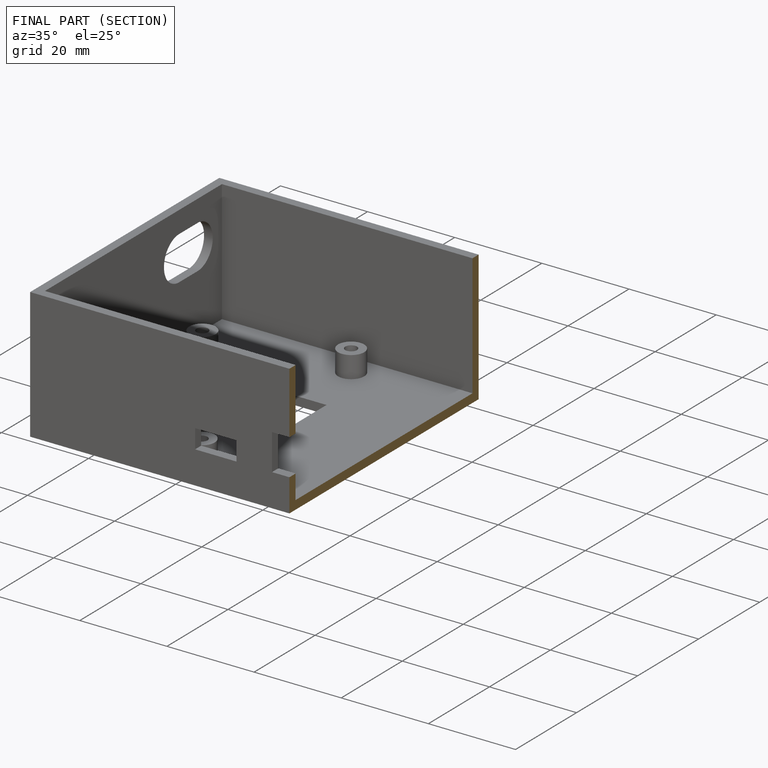
[diagram: finished part — half-section view (interior)]
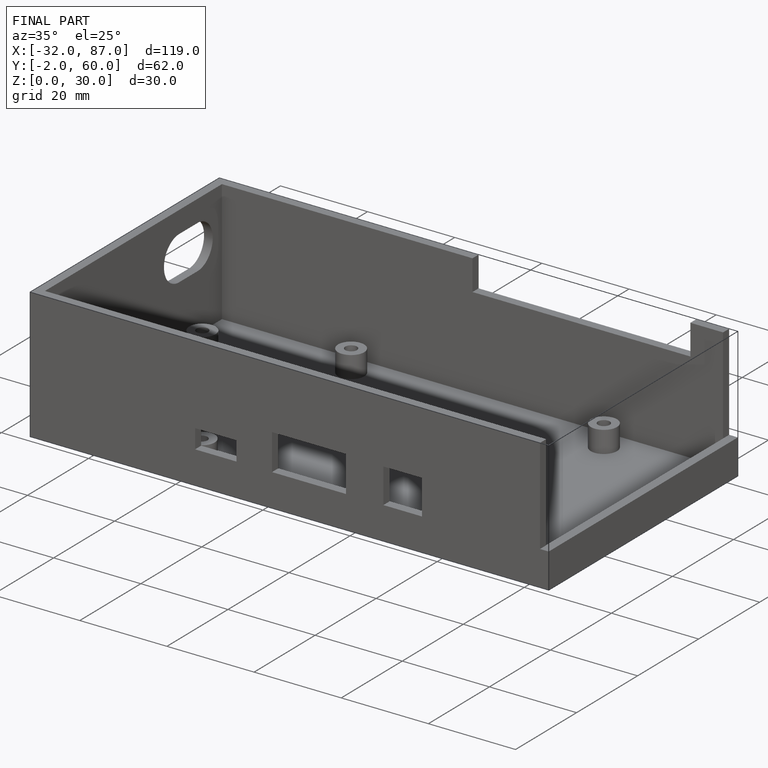
[diagram: finished part — iso view with bounding-box wireframe]
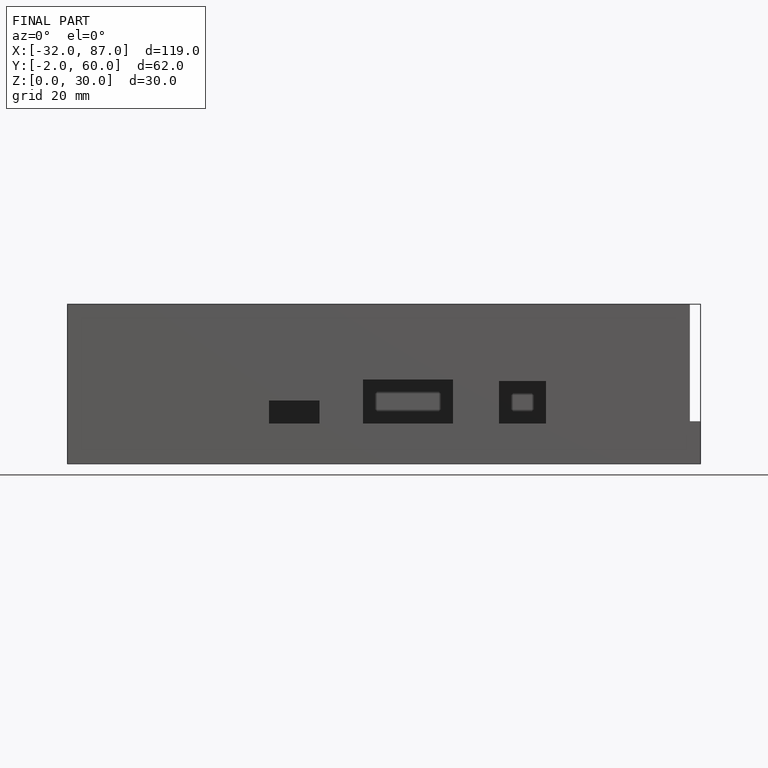
[diagram: finished part — front view with bounding-box wireframe]
